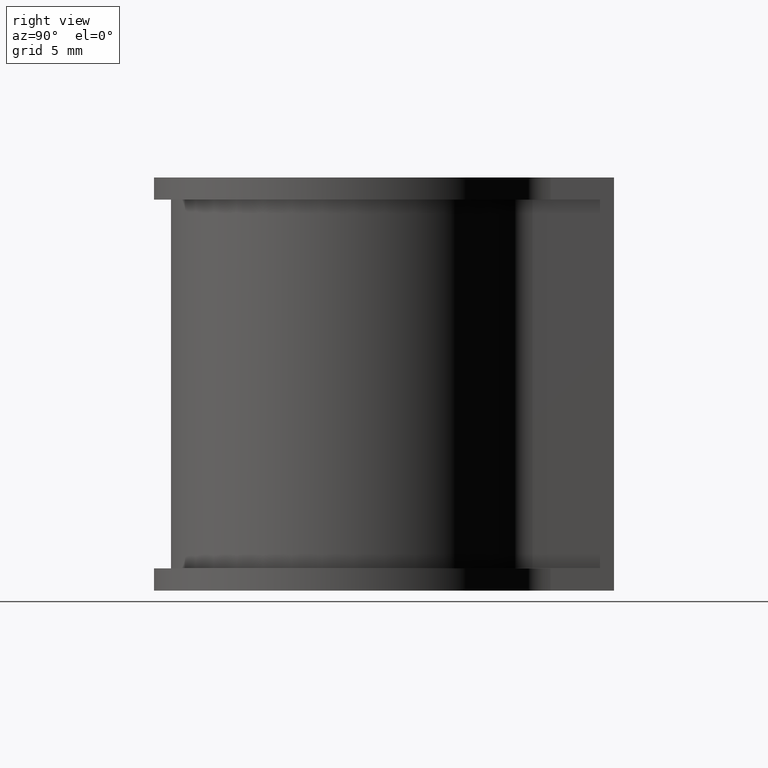
[diagram: clean part render]
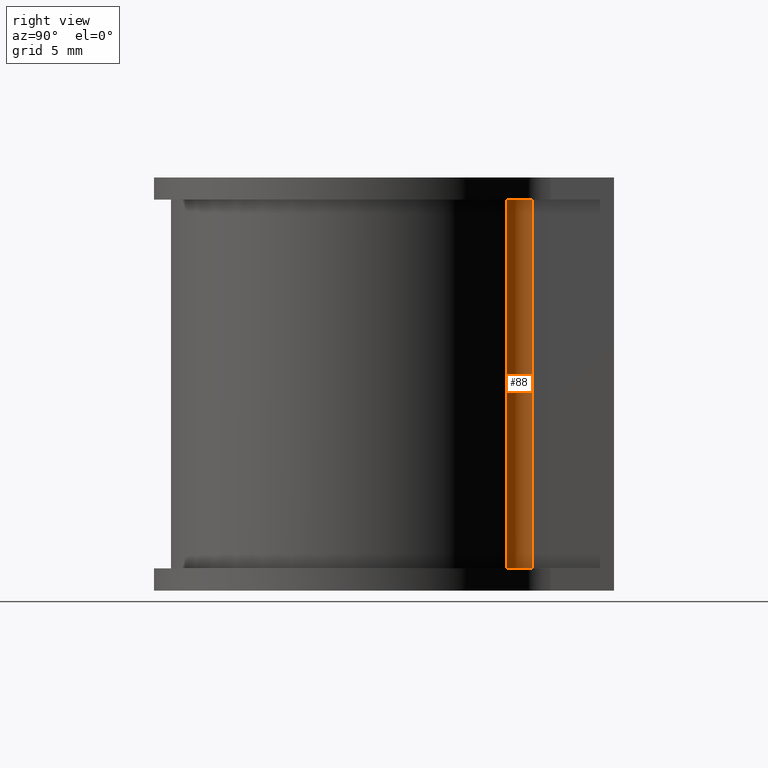
[diagram: same view with one face highlighted and labeled with its STEP entity id]
A machine part, right view. The second image highlights one B-rep face of the part: STEP entity #88.
In plain terms, the highlighted cylindrical surface (edge-blend (fillet) strip) has radius 2 mm, axis along (0, 0, -1).
Its self-contained STEP definition (entity closure, byte-faithful):
#88 = ADVANCED_FACE( '', ( #128 ), #129, .F. );
#128 = FACE_OUTER_BOUND( '', #180, .T. );
#129 = CYLINDRICAL_SURFACE( '', #181, 2.00000000000000 );
#180 = EDGE_LOOP( '', ( #333, #334, #335, #336 ) );
#181 = AXIS2_PLACEMENT_3D( '', #337, #338, #339 );
#333 = ORIENTED_EDGE( '', *, *, #443, .F. );
#334 = ORIENTED_EDGE( '', *, *, #491, .F. );
#335 = ORIENTED_EDGE( '', *, *, #457, .F. );
#336 = ORIENTED_EDGE( '', *, *, #492, .F. );
#337 = CARTESIAN_POINT( '', ( 6.50000000000001, 12.4560226396711, -25.0000000000000 ) );
#338 = DIRECTION( '', ( 0.000000000000000, 0.000000000000000, -1.00000000000000 ) );
#339 = DIRECTION( '', ( 1.00000000000000, 0.000000000000000, 0.000000000000000 ) );
#443 = EDGE_CURVE( '', #529, #509, #531, .T. );
#457 = EDGE_CURVE( '', #553, #555, #556, .F. );
#491 = EDGE_CURVE( '', #555, #529, #611, .T. );
#492 = EDGE_CURVE( '', #509, #553, #612, .T. );
#509 = VERTEX_POINT( '', #633 );
#529 = VERTEX_POINT( '', #658 );
#531 = CIRCLE( '', #661, 2.00000000000000 );
#553 = VERTEX_POINT( '', #694 );
#555 = VERTEX_POINT( '', #696 );
#556 = CIRCLE( '', #697, 2.00000000000000 );
#611 = LINE( '', #770, #771 );
#612 = LINE( '', #772, #773 );
#633 = CARTESIAN_POINT( '', ( 5.57473309608541, 10.6829233315329, -25.0000000000000 ) );
#658 = CARTESIAN_POINT( '', ( 4.50000000000001, 12.4560226396711, -25.0000000000000 ) );
#661 = AXIS2_PLACEMENT_3D( '', #813, #814, #815 );
#694 = CARTESIAN_POINT( '', ( 5.57473309608541, 10.6829233315329, 0.000000000000000 ) );
#696 = CARTESIAN_POINT( '', ( 4.50000000000001, 12.4560226396711, 0.000000000000000 ) );
#697 = AXIS2_PLACEMENT_3D( '', #833, #834, #835 );
#770 = CARTESIAN_POINT( '', ( 4.50000000000001, 12.4560226396711, -25.0000000000000 ) );
#771 = VECTOR( '', #899, 1000.00000000000 );
#772 = CARTESIAN_POINT( '', ( 5.57473309608541, 10.6829233315329, -25.0000000000000 ) );
#773 = VECTOR( '', #900, 1000.00000000000 );
#813 = CARTESIAN_POINT( '', ( 6.50000000000001, 12.4560226396711, -25.0000000000000 ) );
#814 = DIRECTION( '', ( 0.000000000000000, 0.000000000000000, 1.00000000000000 ) );
#815 = DIRECTION( '', ( 1.00000000000000, 0.000000000000000, 0.000000000000000 ) );
#833 = CARTESIAN_POINT( '', ( 6.50000000000001, 12.4560226396711, 0.000000000000000 ) );
#834 = DIRECTION( '', ( 0.000000000000000, 0.000000000000000, 1.00000000000000 ) );
#835 = DIRECTION( '', ( 1.00000000000000, 0.000000000000000, 0.000000000000000 ) );
#899 = DIRECTION( '', ( 0.000000000000000, 0.000000000000000, -1.00000000000000 ) );
#900 = DIRECTION( '', ( 0.000000000000000, 0.000000000000000, 1.00000000000000 ) );